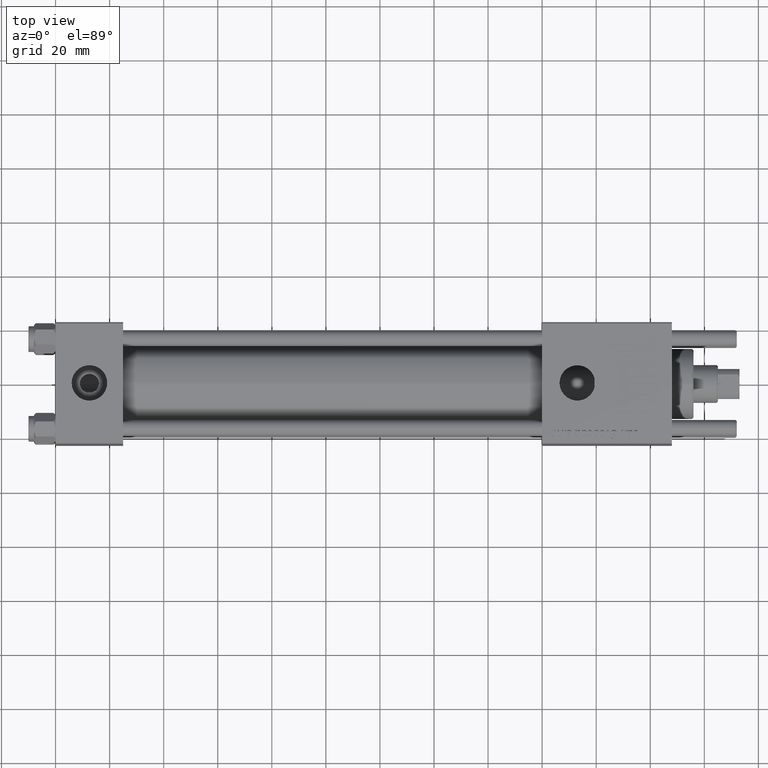
[diagram: clean part render]
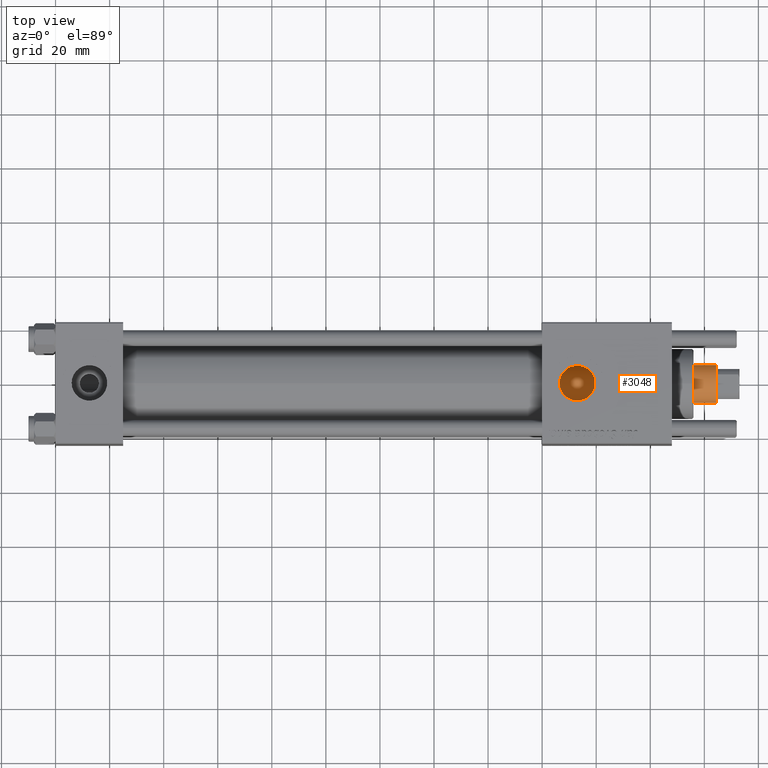
[diagram: same view with one face highlighted and labeled with its STEP entity id]
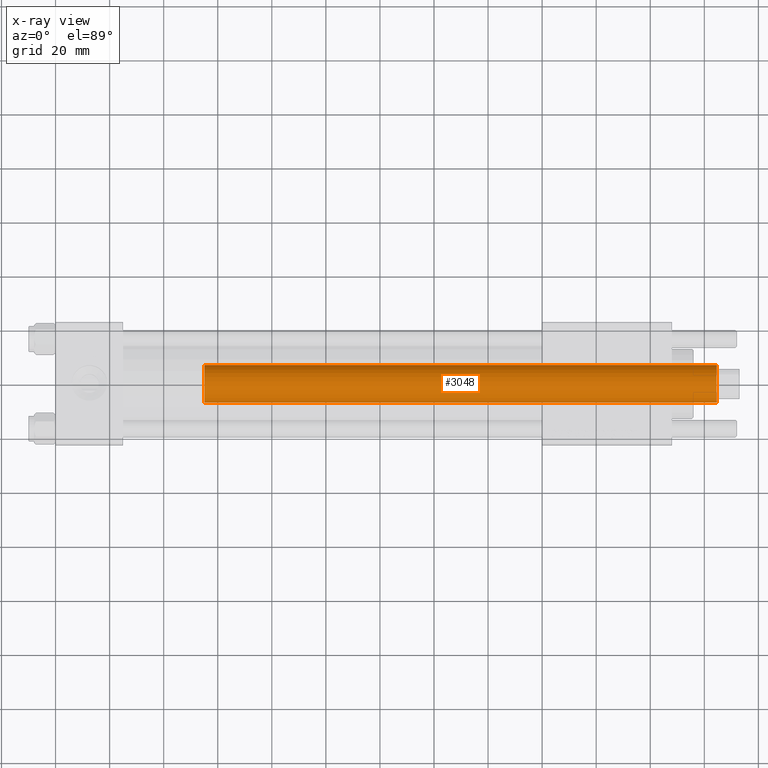
[diagram: x-ray of the same camera — body ghosted, the highlighted face saturated]
A machine part, top view. The second image highlights one B-rep face of the part: STEP entity #3048.
The next image is the same camera in x-ray: the body ghosted, the highlighted face saturated — about 0% of this face is hidden behind the body in this view.
In plain terms, the highlighted cylindrical surface (edge-blend (fillet) strip) has radius 7 mm, axis along (-1, 0, 0).
Its self-contained STEP definition (entity closure, byte-faithful):
#168 = VECTOR ( 'NONE', #11940, 1000.000000000000000 ) ;
#3048 = ADVANCED_FACE ( 'NONE', ( #40513 ), #29554, .T. ) ;
#5583 = CIRCLE ( 'NONE', #20256, 7.000000000000000000 ) ;
#10130 = ORIENTED_EDGE ( 'NONE', *, *, #28581, .F. ) ;
#11940 = DIRECTION ( 'NONE',  ( -0.000000000000000000, -0.000000000000000000, -1.000000000000000000 ) ) ;
#12100 = CIRCLE ( 'NONE', #51568, 7.000000000000000000 ) ;
#12823 = ORIENTED_EDGE ( 'NONE', *, *, #26040, .T. ) ;
#12847 = AXIS2_PLACEMENT_3D ( 'NONE', #47070, #51106, #45926 ) ;
#13390 = ORIENTED_EDGE ( 'NONE', *, *, #20973, .T. ) ;
#18248 = EDGE_CURVE ( 'NONE', #36301, #32039, #5583, .T. ) ;
#20256 = AXIS2_PLACEMENT_3D ( 'NONE', #50464, #47007, #32939 ) ;
#20382 = ORIENTED_EDGE ( 'NONE', *, *, #18248, .T. ) ;
#20973 = EDGE_CURVE ( 'NONE', #32039, #45201, #37530, .T. ) ;
#21764 = DIRECTION ( 'NONE',  ( -0.000000000000000000, -0.000000000000000000, -1.000000000000000000 ) ) ;
#23819 = CARTESIAN_POINT ( 'NONE',  ( 7.000000000000000000, 8.572527594031473190E-16, 219.4999999999999716 ) ) ;
#25795 = LINE ( 'NONE', #52806, #51645 ) ;
#26040 = EDGE_CURVE ( 'NONE', #45201, #34946, #12100, .T. ) ;
#26535 = CARTESIAN_POINT ( 'NONE',  ( -7.000000000000000000, 0.000000000000000000, 30.00000000000000000 ) ) ;
#28014 = EDGE_LOOP ( 'NONE', ( #10130, #20382, #13390, #12823 ) ) ;
#28581 = EDGE_CURVE ( 'NONE', #36301, #34946, #25795, .T. ) ;
#29554 = CYLINDRICAL_SURFACE ( 'NONE', #12847, 7.000000000000000000 ) ;
#31454 = CARTESIAN_POINT ( 'NONE',  ( -7.000000000000000000, 0.000000000000000000, 219.4999999999999716 ) ) ;
#32039 = VERTEX_POINT ( 'NONE', #31454 ) ;
#32939 = DIRECTION ( 'NONE',  ( 1.000000000000000000, 0.000000000000000000, 0.000000000000000000 ) ) ;
#32950 = DIRECTION ( 'NONE',  ( 1.000000000000000000, 0.000000000000000000, 0.000000000000000000 ) ) ;
#34946 = VERTEX_POINT ( 'NONE', #49647 ) ;
#36301 = VERTEX_POINT ( 'NONE', #23819 ) ;
#37530 = LINE ( 'NONE', #42692, #168 ) ;
#40513 = FACE_OUTER_BOUND ( 'NONE', #28014, .T. ) ;
#41586 = DIRECTION ( 'NONE',  ( 0.000000000000000000, 0.000000000000000000, 1.000000000000000000 ) ) ;
#42692 = CARTESIAN_POINT ( 'NONE',  ( -7.000000000000000000, 0.000000000000000000, 220.0000000000000000 ) ) ;
#45201 = VERTEX_POINT ( 'NONE', #26535 ) ;
#45926 = DIRECTION ( 'NONE',  ( -1.000000000000000000, 0.000000000000000000, 0.000000000000000000 ) ) ;
#47007 = DIRECTION ( 'NONE',  ( 0.000000000000000000, 0.000000000000000000, -1.000000000000000000 ) ) ;
#47070 = CARTESIAN_POINT ( 'NONE',  ( 0.000000000000000000, 0.000000000000000000, 220.0000000000000000 ) ) ;
#49647 = CARTESIAN_POINT ( 'NONE',  ( 7.000000000000000000, 8.572527594031473190E-16, 30.00000000000000000 ) ) ;
#50464 = CARTESIAN_POINT ( 'NONE',  ( 0.000000000000000000, 0.000000000000000000, 219.4999999999999716 ) ) ;
#51106 = DIRECTION ( 'NONE',  ( -0.000000000000000000, -0.000000000000000000, -1.000000000000000000 ) ) ;
#51568 = AXIS2_PLACEMENT_3D ( 'NONE', #55652, #41586, #32950 ) ;
#51645 = VECTOR ( 'NONE', #21764, 1000.000000000000000 ) ;
#52806 = CARTESIAN_POINT ( 'NONE',  ( 7.000000000000000000, 8.572527594031473190E-16, 220.0000000000000000 ) ) ;
#55652 = CARTESIAN_POINT ( 'NONE',  ( 0.000000000000000000, 0.000000000000000000, 30.00000000000000000 ) ) ;